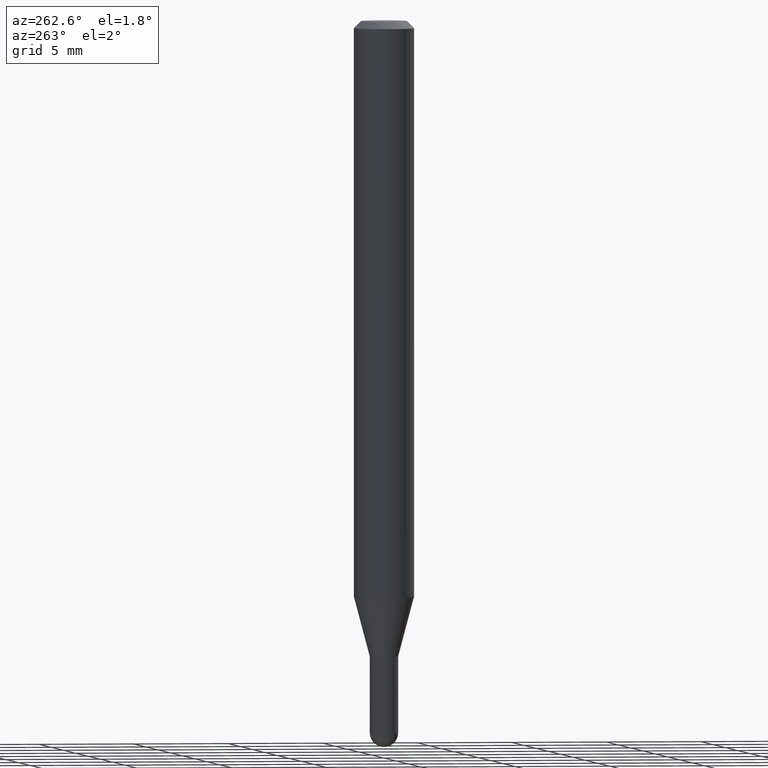
[diagram: clean part render]
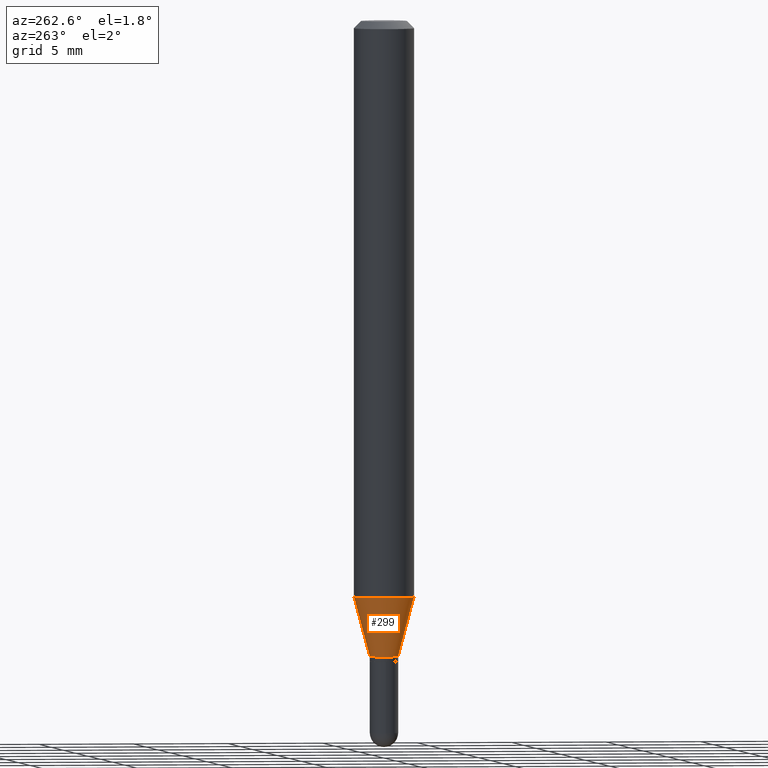
[diagram: same view with one face highlighted and labeled with its STEP entity id]
A machine part, auxiliary view. The second image highlights one B-rep face of the part: STEP entity #299.
In plain terms, the highlighted conical surface has half-angle 15 deg.
Its self-contained STEP definition (entity closure, byte-faithful):
#1 = LINE ( 'NONE', #76, #365 ) ;
#11 = EDGE_CURVE ( 'NONE', #151, #430, #1, .T. ) ;
#33 = CARTESIAN_POINT ( 'NONE',  ( 3.210885532862809934E-29, -4.584336492585996193E-15, -1.313000000000000167 ) ) ;
#43 = CARTESIAN_POINT ( 'NONE',  ( 3.210885532862809934E-29, -4.584336492585996193E-15, -1.313000000000000167 ) ) ;
#67 = ORIENTED_EDGE ( 'NONE', *, *, #447, .T. ) ;
#74 = ORIENTED_EDGE ( 'NONE', *, *, #183, .F. ) ;
#76 = CARTESIAN_POINT ( 'NONE',  ( 2.096101070492630704E-16, 0.02949999999999561653, -1.313000000000000167 ) ) ;
#122 = CIRCLE ( 'NONE', #507, 0.02950000000000019967 ) ;
#151 = VERTEX_POINT ( 'NONE', #378 ) ;
#155 = DIRECTION ( 'NONE',  ( -6.982962677686265922E-15, -1.000000000000000000, 0.000000000000000000 ) ) ;
#160 = CARTESIAN_POINT ( 'NONE',  ( -4.364351673553626788E-16, -0.06250000000000417721, -1.189842323350228215 ) ) ;
#178 = CONICAL_SURFACE ( 'NONE', #254, 0.02950000000000019967, 0.2617993877991502960 ) ;
#179 = VERTEX_POINT ( 'NONE', #416 ) ;
#183 = EDGE_CURVE ( 'NONE', #430, #350, #298, .T. ) ;
#197 = DIRECTION ( 'NONE',  ( -2.445457374609908707E-29, 3.491497709509516713E-15, 1.000000000000000000 ) ) ;
#219 = AXIS2_PLACEMENT_3D ( 'NONE', #262, #276, #312 ) ;
#248 = CARTESIAN_POINT ( 'NONE',  ( 4.440892098500915082E-16, 0.06249999999999580891, -1.189842323350228437 ) ) ;
#254 = AXIS2_PLACEMENT_3D ( 'NONE', #43, #431, #155 ) ;
#260 = ORIENTED_EDGE ( 'NONE', *, *, #11, .F. ) ;
#262 = CARTESIAN_POINT ( 'NONE',  ( 2.909708684259803731E-29, -4.154331746654804054E-15, -1.189842323350228437 ) ) ;
#271 = ORIENTED_EDGE ( 'NONE', *, *, #345, .T. ) ;
#276 = DIRECTION ( 'NONE',  ( -2.445457374609908707E-29, 3.491497709509516713E-15, 1.000000000000000000 ) ) ;
#298 = CIRCLE ( 'NONE', #219, 0.06250000000000000000 ) ;
#299 = ADVANCED_FACE ( 'NONE', ( #474 ), #178, .T. ) ;
#312 = DIRECTION ( 'NONE',  ( -6.982962677686265922E-15, -1.000000000000000000, 4.370956789862821150E-15 ) ) ;
#345 = EDGE_CURVE ( 'NONE', #179, #350, #510, .T. ) ;
#350 = VERTEX_POINT ( 'NONE', #160 ) ;
#356 = VECTOR ( 'NONE', #472, 39.37007874015748143 ) ;
#365 = VECTOR ( 'NONE', #399, 39.37007874015748143 ) ;
#378 = CARTESIAN_POINT ( 'NONE',  ( 3.268496584496773879E-16, 0.02949999999999561653, -1.313000000000000167 ) ) ;
#394 = DIRECTION ( 'NONE',  ( -6.982962677686265922E-15, -1.000000000000000000, 0.000000000000000000 ) ) ;
#399 = DIRECTION ( 'NONE',  ( 1.839019923739600315E-15, 0.2588190451025249583, 0.9659258262890670910 ) ) ;
#416 = CARTESIAN_POINT ( 'NONE',  ( -2.059973989917141251E-16, -0.02950000000000478281, -1.313000000000000167 ) ) ;
#430 = VERTEX_POINT ( 'NONE', #248 ) ;
#431 = DIRECTION ( 'NONE',  ( -2.445457374609908707E-29, 3.491497709509516713E-15, 1.000000000000000000 ) ) ;
#436 = CARTESIAN_POINT ( 'NONE',  ( -2.059973989917141251E-16, -0.02950000000000478281, -1.313000000000000167 ) ) ;
#447 = EDGE_CURVE ( 'NONE', #151, #179, #122, .T. ) ;
#462 = EDGE_LOOP ( 'NONE', ( #260, #67, #271, #74 ) ) ;
#472 = DIRECTION ( 'NONE',  ( -1.807323732225330139E-15, -0.2588190451025181860, 0.9659258262890689783 ) ) ;
#474 = FACE_OUTER_BOUND ( 'NONE', #462, .T. ) ;
#507 = AXIS2_PLACEMENT_3D ( 'NONE', #33, #197, #394 ) ;
#510 = LINE ( 'NONE', #436, #356 ) ;